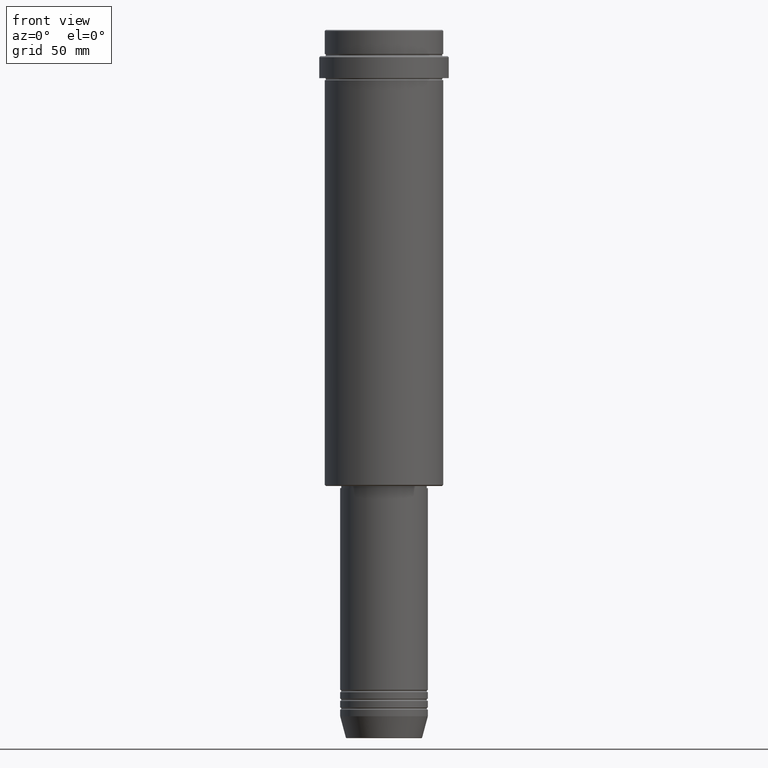
[diagram: clean part render]
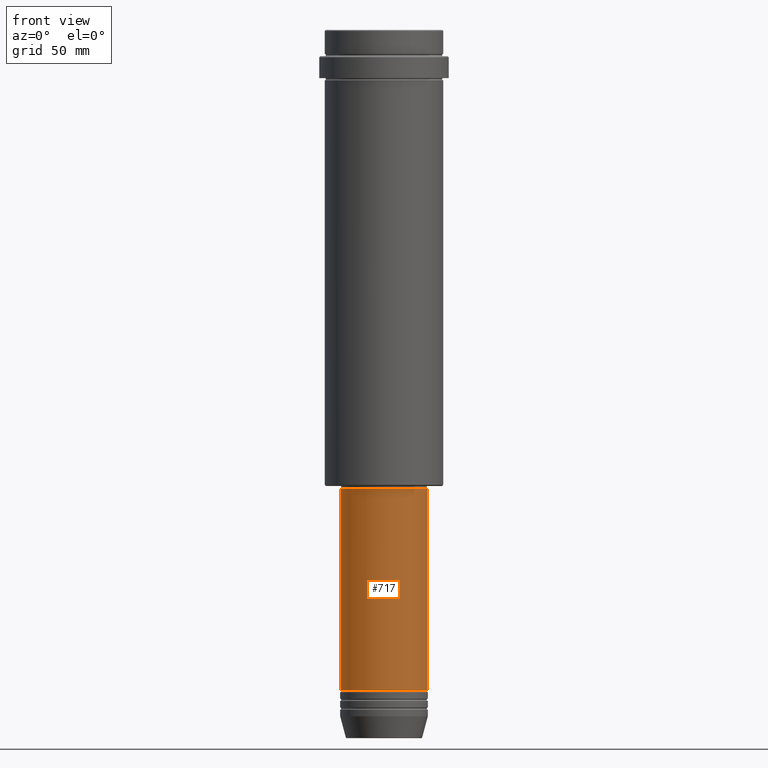
[diagram: same view with one face highlighted and labeled with its STEP entity id]
A machine part, front view. The second image highlights one B-rep face of the part: STEP entity #717.
In plain terms, the highlighted cylindrical surface (partial cylindrical patch) has radius 20 mm, axis along (-0, -0, 1).
Its self-contained STEP definition (entity closure, byte-faithful):
#68 = CARTESIAN_POINT ( 'NONE',  ( 0.000000000000000000, 0.000000000000000000, -208.9999999999999432 ) ) ;
#106 = CARTESIAN_POINT ( 'NONE',  ( 20.00000000000000000, 0.000000000000000000, -300.9999999999998863 ) ) ;
#170 = VECTOR ( 'NONE', #926, 1000.000000000000000 ) ;
#182 = VERTEX_POINT ( 'NONE', #627 ) ;
#241 = AXIS2_PLACEMENT_3D ( 'NONE', #68, #1270, #1351 ) ;
#247 = VERTEX_POINT ( 'NONE', #106 ) ;
#435 = CARTESIAN_POINT ( 'NONE',  ( 0.000000000000000000, 0.000000000000000000, -300.9999999999998863 ) ) ;
#449 = DIRECTION ( 'NONE',  ( -0.000000000000000000, -0.000000000000000000, 1.000000000000000000 ) ) ;
#461 = EDGE_CURVE ( 'NONE', #1119, #247, #483, .T. ) ;
#483 = CIRCLE ( 'NONE', #1292, 20.00000000000000000 ) ;
#519 = DIRECTION ( 'NONE',  ( 1.000000000000000000, 0.000000000000000000, 0.000000000000000000 ) ) ;
#543 = CARTESIAN_POINT ( 'NONE',  ( 20.00000000000000000, 0.000000000000000000, 0.000000000000000000 ) ) ;
#601 = CIRCLE ( 'NONE', #241, 20.00000000000000000 ) ;
#612 = EDGE_CURVE ( 'NONE', #247, #182, #885, .T. ) ;
#625 = VECTOR ( 'NONE', #449, 1000.000000000000000 ) ;
#627 = CARTESIAN_POINT ( 'NONE',  ( 20.00000000000000000, 0.000000000000000000, -208.9999999999999432 ) ) ;
#669 = EDGE_CURVE ( 'NONE', #1134, #182, #601, .T. ) ;
#691 = DIRECTION ( 'NONE',  ( -0.000000000000000000, -0.000000000000000000, 1.000000000000000000 ) ) ;
#700 = CYLINDRICAL_SURFACE ( 'NONE', #1402, 20.00000000000000000 ) ;
#709 = ORIENTED_EDGE ( 'NONE', *, *, #669, .F. ) ;
#717 = ADVANCED_FACE ( 'NONE', ( #836 ), #700, .T. ) ;
#752 = DIRECTION ( 'NONE',  ( -0.000000000000000000, -0.000000000000000000, 1.000000000000000000 ) ) ;
#792 = CARTESIAN_POINT ( 'NONE',  ( -20.00000000000000000, 2.449293598294706513E-15, -208.9999999999999432 ) ) ;
#818 = LINE ( 'NONE', #1126, #170 ) ;
#836 = FACE_OUTER_BOUND ( 'NONE', #1186, .T. ) ;
#885 = LINE ( 'NONE', #543, #625 ) ;
#926 = DIRECTION ( 'NONE',  ( -0.000000000000000000, -0.000000000000000000, 1.000000000000000000 ) ) ;
#1030 = EDGE_CURVE ( 'NONE', #1119, #1134, #818, .T. ) ;
#1038 = ORIENTED_EDGE ( 'NONE', *, *, #612, .T. ) ;
#1119 = VERTEX_POINT ( 'NONE', #1343 ) ;
#1126 = CARTESIAN_POINT ( 'NONE',  ( -20.00000000000000000, 2.449293598294706513E-15, 0.000000000000000000 ) ) ;
#1134 = VERTEX_POINT ( 'NONE', #792 ) ;
#1137 = DIRECTION ( 'NONE',  ( 1.000000000000000000, 0.000000000000000000, 0.000000000000000000 ) ) ;
#1177 = ORIENTED_EDGE ( 'NONE', *, *, #1030, .F. ) ;
#1186 = EDGE_LOOP ( 'NONE', ( #1177, #1377, #1038, #709 ) ) ;
#1270 = DIRECTION ( 'NONE',  ( -0.000000000000000000, -0.000000000000000000, 1.000000000000000000 ) ) ;
#1278 = CARTESIAN_POINT ( 'NONE',  ( 0.000000000000000000, 0.000000000000000000, 0.000000000000000000 ) ) ;
#1292 = AXIS2_PLACEMENT_3D ( 'NONE', #435, #752, #519 ) ;
#1343 = CARTESIAN_POINT ( 'NONE',  ( -20.00000000000000000, 2.449293598294706513E-15, -300.9999999999998863 ) ) ;
#1351 = DIRECTION ( 'NONE',  ( 1.000000000000000000, 0.000000000000000000, 0.000000000000000000 ) ) ;
#1377 = ORIENTED_EDGE ( 'NONE', *, *, #461, .T. ) ;
#1402 = AXIS2_PLACEMENT_3D ( 'NONE', #1278, #691, #1137 ) ;